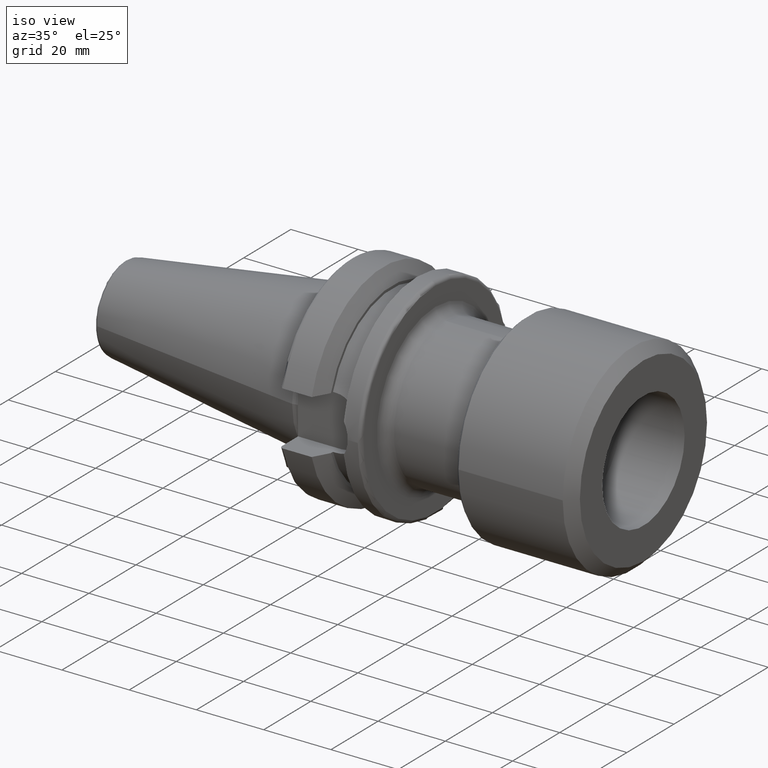
[diagram: clean part render]
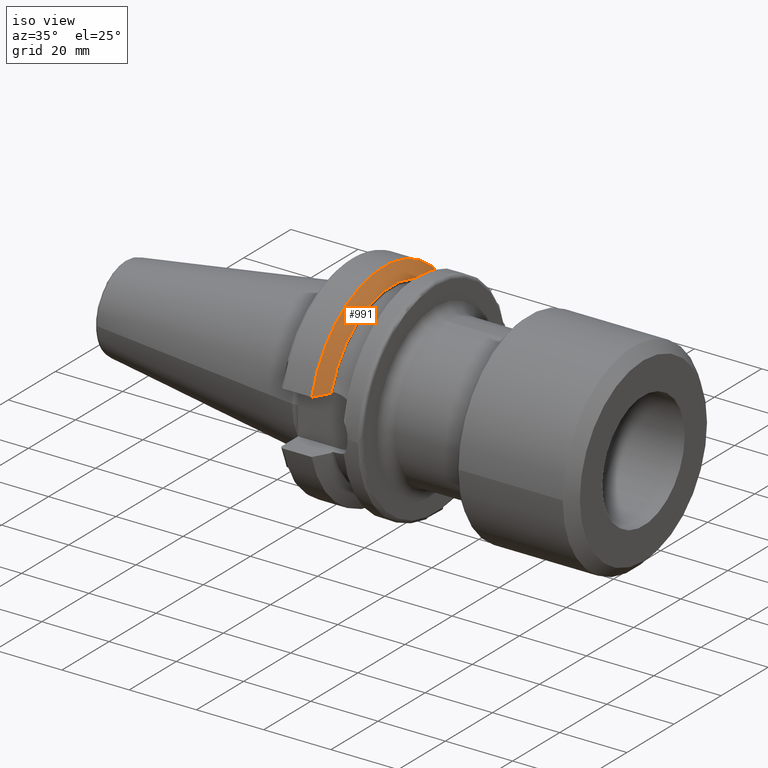
[diagram: same view with one face highlighted and labeled with its STEP entity id]
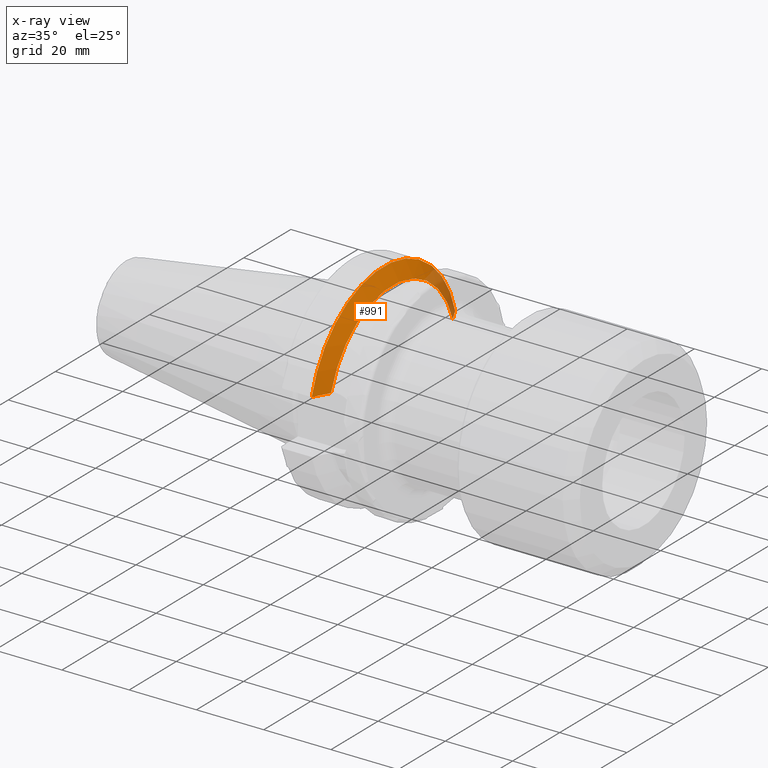
[diagram: x-ray of the same camera — body ghosted, the highlighted face saturated]
A machine part, iso view. The second image highlights one B-rep face of the part: STEP entity #991.
The next image is the same camera in x-ray: the body ghosted, the highlighted face saturated — about 11% of this face is hidden behind the body in this view.
In plain terms, the highlighted conical surface has half-angle 60.125 deg.
Its self-contained STEP definition (entity closure, byte-faithful):
#35=(
BOUNDED_CURVE()
B_SPLINE_CURVE(2,(#1675,#1676,#1677),.UNSPECIFIED.,.F.,.F.)
B_SPLINE_CURVE_WITH_KNOTS((3,3),(0.,0.52358279083281),.UNSPECIFIED.)
CURVE()
GEOMETRIC_REPRESENTATION_ITEM()
RATIONAL_B_SPLINE_CURVE((1.,1.00307360097546,1.))
REPRESENTATION_ITEM('')
);
#38=(
BOUNDED_CURVE()
B_SPLINE_CURVE(2,(#1835,#1836,#1837),.UNSPECIFIED.,.F.,.F.)
B_SPLINE_CURVE_WITH_KNOTS((3,3),(0.,0.52358279083281),.UNSPECIFIED.)
CURVE()
GEOMETRIC_REPRESENTATION_ITEM()
RATIONAL_B_SPLINE_CURVE((1.,1.00307360097546,1.))
REPRESENTATION_ITEM('')
);
#152=FACE_OUTER_BOUND('',#218,.T.);
#218=EDGE_LOOP('',(#861,#862,#863,#864));
#395=CIRCLE('',#1175,31.5000000000001);
#396=CIRCLE('',#1177,27.0940716549138);
#451=VERTEX_POINT('',#1672);
#452=VERTEX_POINT('',#1674);
#483=VERTEX_POINT('',#1832);
#484=VERTEX_POINT('',#1834);
#556=EDGE_CURVE('',#452,#451,#35,.T.);
#601=EDGE_CURVE('',#484,#483,#38,.T.);
#622=EDGE_CURVE('',#483,#452,#395,.T.);
#623=EDGE_CURVE('',#484,#451,#396,.T.);
#861=ORIENTED_EDGE('',*,*,#556,.T.);
#862=ORIENTED_EDGE('',*,*,#623,.F.);
#863=ORIENTED_EDGE('',*,*,#601,.T.);
#864=ORIENTED_EDGE('',*,*,#622,.T.);
#946=CONICAL_SURFACE('',#1176,29.2970358274569,1.0493792127616);
#991=ADVANCED_FACE('',(#152),#946,.T.);
#1175=AXIS2_PLACEMENT_3D('',#1878,#1447,#1448);
#1176=AXIS2_PLACEMENT_3D('',#1879,#1449,#1450);
#1177=AXIS2_PLACEMENT_3D('',#1880,#1451,#1452);
#1447=DIRECTION('center_axis',(1.,0.,0.));
#1448=DIRECTION('ref_axis',(0.,0.,-1.));
#1449=DIRECTION('center_axis',(-1.,0.,0.));
#1450=DIRECTION('ref_axis',(0.,1.,0.));
#1451=DIRECTION('center_axis',(1.,0.,0.));
#1452=DIRECTION('ref_axis',(0.,0.,-1.));
#1672=CARTESIAN_POINT('',(14.1,-25.8705666509569,8.05));
#1674=CARTESIAN_POINT('',(11.5690363073382,-30.4540227227866,8.05));
#1675=CARTESIAN_POINT('Ctrl Pts',(11.5690363073382,-30.4540227227866,8.05));
#1676=CARTESIAN_POINT('Ctrl Pts',(12.9374976962938,-27.989970265181,8.05));
#1677=CARTESIAN_POINT('Ctrl Pts',(14.1,-25.8705666509569,8.05));
#1832=CARTESIAN_POINT('',(11.5690363073382,30.4540227227866,8.05));
#1834=CARTESIAN_POINT('',(14.1,25.8705666509569,8.05));
#1835=CARTESIAN_POINT('Ctrl Pts',(14.1,25.8705666509569,8.05));
#1836=CARTESIAN_POINT('Ctrl Pts',(12.9374976962938,27.989970265181,8.05));
#1837=CARTESIAN_POINT('Ctrl Pts',(11.5690363073382,30.4540227227866,8.05));
#1878=CARTESIAN_POINT('Origin',(11.5690363073382,0.,0.));
#1879=CARTESIAN_POINT('Origin',(12.8345181536691,0.,0.));
#1880=CARTESIAN_POINT('Origin',(14.1,0.,0.));